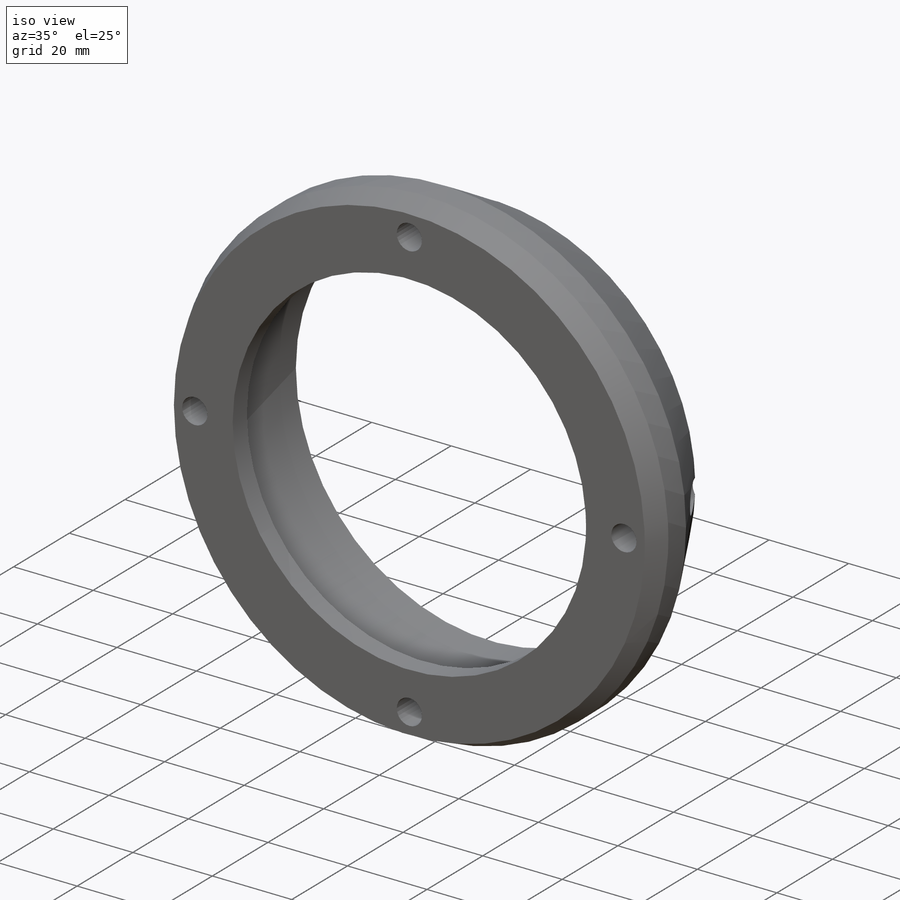
[diagram: iso view]
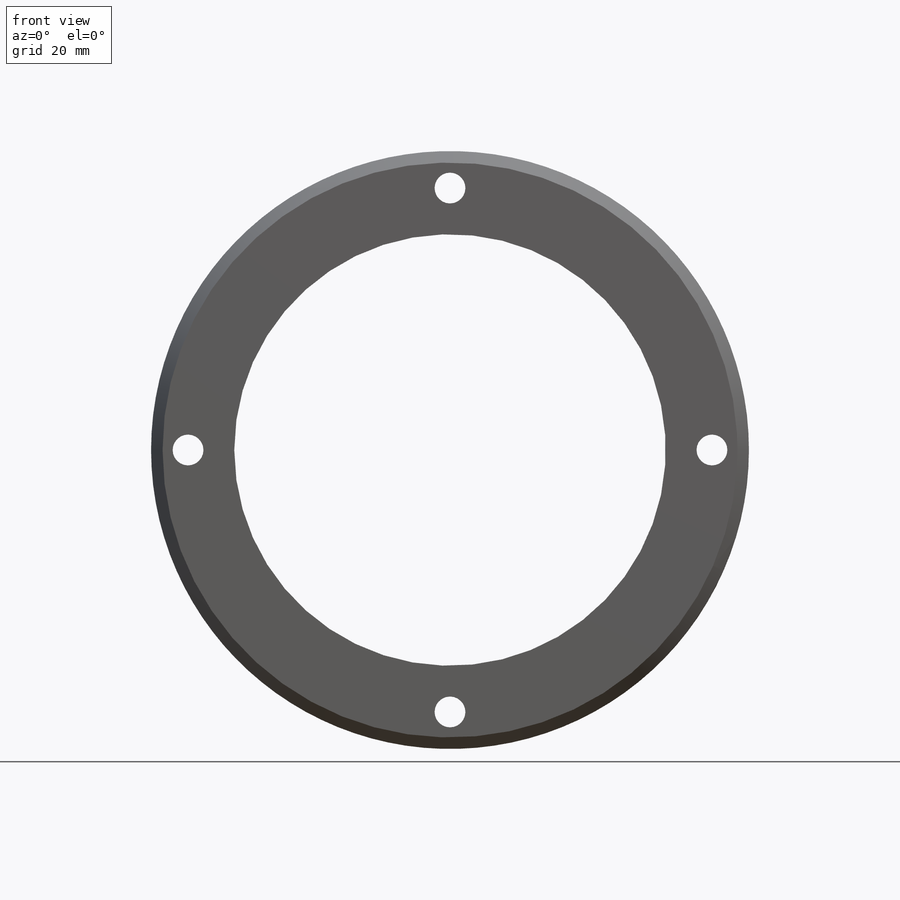
[diagram: front view]
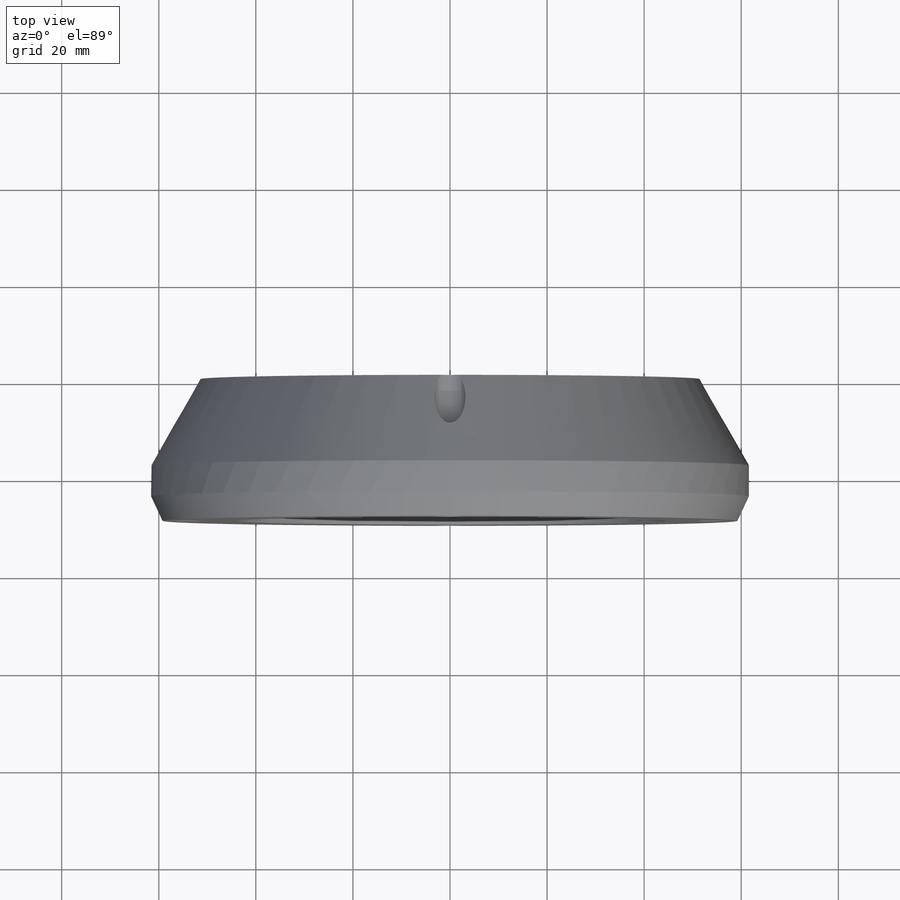
[diagram: top view]
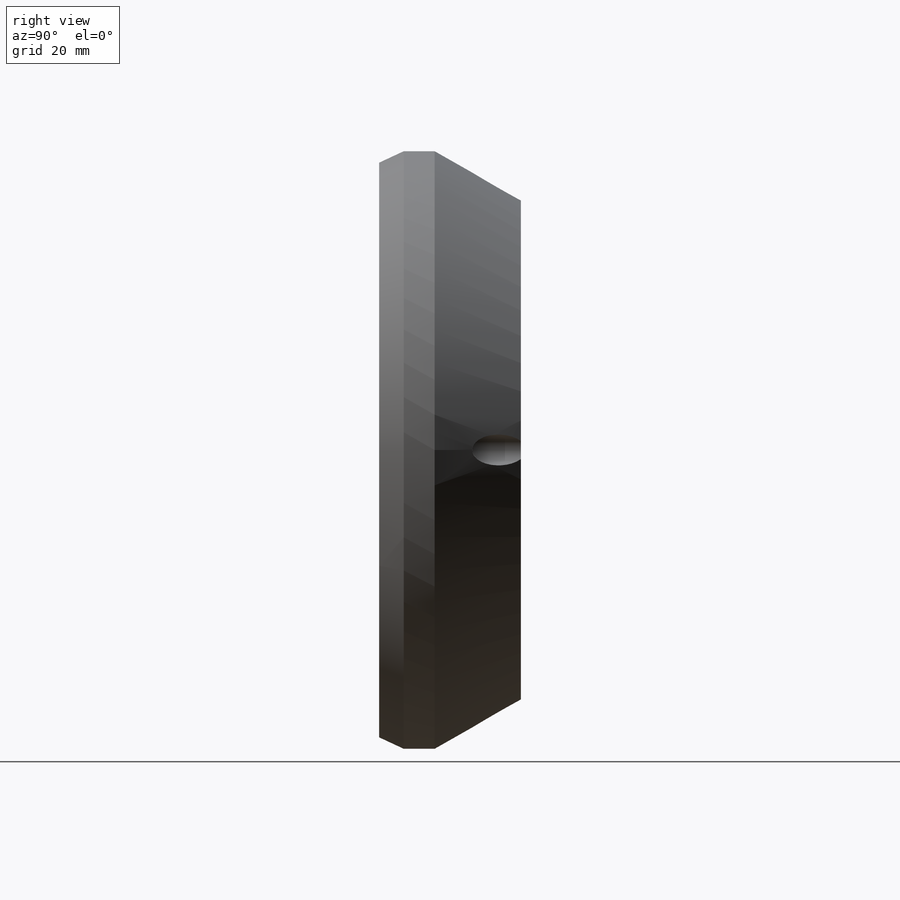
[diagram: right view]
SOLIDWORKS PART (.sldprt)
format: sldprt  version: not decoded by parser v0  size: 392,192 bytes
history: native  units: mm
features: sketch x6, chamfer x2, material x1, extrude x1, cut_extrude x1, hole x1, pattern_circular x1 (+16 scaffold rows collapsed)
feature tree (29):
  scaffold x16  (default folders/planes/origin — collapsed)
  material  "Material <not specified>"
  sketch  "Sketch1"  dims[D1=43.18mm]
  extrude  "Extrude1"  Depth=29.21mm
  sketch  "Sketch2"  dims[D1=~45.00332mm]
  cut_extrude  "Extrude2"  Depth=24.13mm
  sketch  "Sketch3"  dims[D1=6.985mm]
  chamfer  "Chamfer2"  Distance=10.16mm
  hole  "1/4 (0.25) Diameter Hole1"  Diameter=6.35mm Depth=29.21mm
  sketch  "Sketch5"
  sketch  "Sketch4"  dims[hole-wizard template sketch: 60 standard entries collapsed; hole parameters kept: c18.Thru Hole Depth=29.21mm]
  pattern_circular  "CirPattern1"  Count=4 Angle=360deg
  sketch  "Sketch6"
  chamfer  "Chamfer1"  Distance=5.08mm Angle=25deg
decode coverage: 10 of 12 modeling features carry decoded parameters
note: ~ marks probable driven/reference dimensions
note: suppression state not decoded; provenance and decode notes live in map.json
